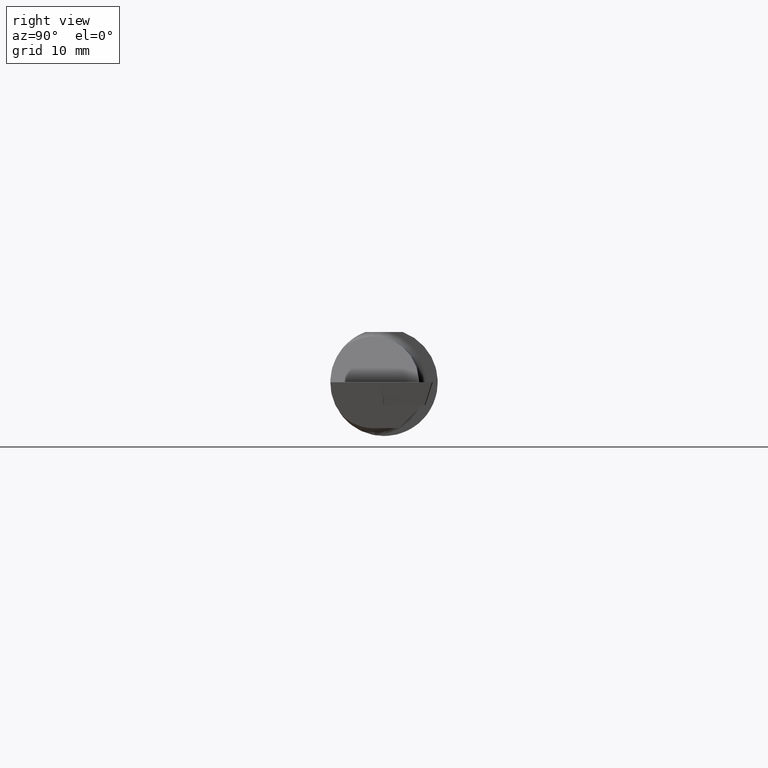
[diagram: clean part render]
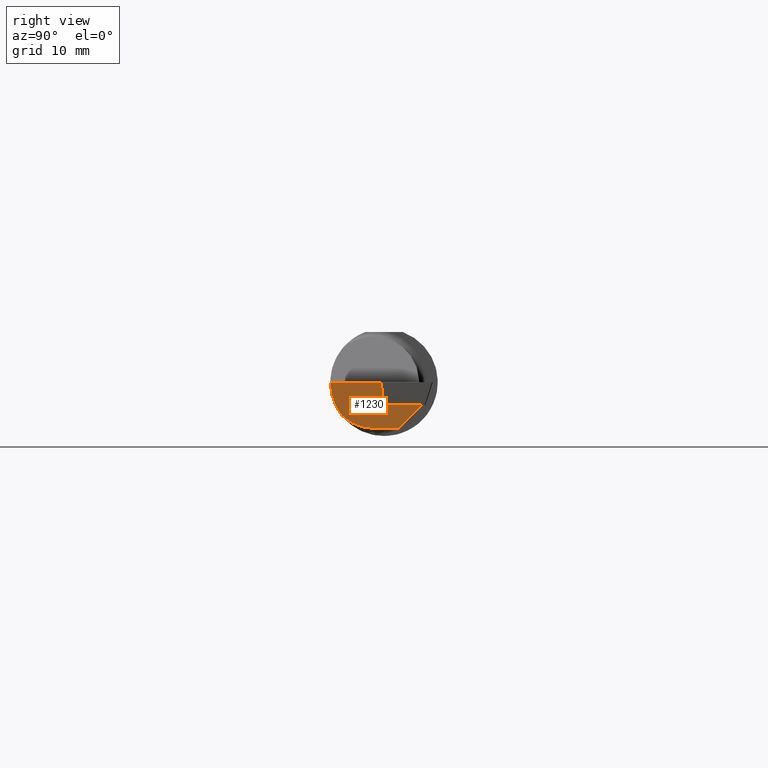
[diagram: same view with one face highlighted and labeled with its STEP entity id]
A machine part, right view. The second image highlights one B-rep face of the part: STEP entity #1230.
In plain terms, the highlighted planar face has unit normal (-0.9932, 0.0262, 0.1132).
Its self-contained STEP definition (entity closure, byte-faithful):
#6 = DIRECTION ( 'NONE',  ( 0.1096666863977468070, -0.1096666863977478895, 0.9879000130524728807 ) ) ;
#21 = CARTESIAN_POINT ( 'NONE',  ( 2.441998784599167749, 0.04365121540083128499, -0.4796930510801391545 ) ) ;
#23 = EDGE_CURVE ( 'NONE', #964, #334, #146, .T. ) ;
#39 = ORIENTED_EDGE ( 'NONE', *, *, #469, .T. ) ;
#69 = VECTOR ( 'NONE', #915, 39.37007874015748854 ) ;
#87 = CARTESIAN_POINT ( 'NONE',  ( 2.464961778531886250, -0.04354375554968627909, -0.2579796886342063389 ) ) ;
#104 = CARTESIAN_POINT ( 'NONE',  ( 2.489993752604012567, 0.1325046208776947954, -0.07899999999999998690 ) ) ;
#113 = CARTESIAN_POINT ( 'NONE',  ( 2.475215915314673332, -0.07804297771170461140, -0.1599999999999999756 ) ) ;
#145 = ORIENTED_EDGE ( 'NONE', *, *, #616, .T. ) ;
#146 = LINE ( 'NONE', #987, #755 ) ;
#185 = CARTESIAN_POINT ( 'NONE',  ( 2.481746091699616130, 0.1697313636084475386, -0.1600000000000000033 ) ) ;
#213 = PLANE ( 'NONE',  #236 ) ;
#235 = VERTEX_POINT ( 'NONE', #737 ) ;
#236 = AXIS2_PLACEMENT_3D ( 'NONE', #1184, #393, #884 ) ;
#281 = EDGE_CURVE ( 'NONE', #235, #1105, #825, .T. ) ;
#288 = CARTESIAN_POINT ( 'NONE',  ( 2.490564789181363814, -0.1873500000000000165, -1.024442997624098707E-16 ) ) ;
#310 = EDGE_CURVE ( 'NONE', #928, #235, #1086, .T. ) ;
#328 = ORIENTED_EDGE ( 'NONE', *, *, #1168, .T. ) ;
#334 = VERTEX_POINT ( 'NONE', #104 ) ;
#361 = ORIENTED_EDGE ( 'NONE', *, *, #281, .F. ) ;
#393 = DIRECTION ( 'NONE',  ( -0.9932313834166578426, 0.02617694830794023778, 0.1131644218538477714 ) ) ;
#408 = CARTESIAN_POINT ( 'NONE',  ( 2.478665149256253919, 0.05283123112360996881, -0.1600000000000000033 ) ) ;
#414 = CARTESIAN_POINT ( 'NONE',  ( 2.478260734595986392, -0.1458506693440426993, -0.1175908361731249352 ) ) ;
#430 = CARTESIAN_POINT ( 'NONE',  ( 2.486479682052326723, -0.0008296820523284446263, -0.07900000000000001465 ) ) ;
#466 = CARTESIAN_POINT ( 'NONE',  ( 2.476288392475423983, -0.03734999999999997350, -0.1600000000000000033 ) ) ;
#469 = EDGE_CURVE ( 'NONE', #1212, #334, #646, .T. ) ;
#471 = DIRECTION ( 'NONE',  ( 0.02634618898897572378, 0.9996528789163552364, -0.000000000000000000 ) ) ;
#483 = CARTESIAN_POINT ( 'NONE',  ( 2.475904879864233799, -0.1159436613722071852, -0.1451859319188884556 ) ) ;
#528 = ORIENTED_EDGE ( 'NONE', *, *, #23, .F. ) ;
#540 = CARTESIAN_POINT ( 'NONE',  ( 2.478260734595986392, -0.1458506693440426993, -0.1175908361731249352 ) ) ;
#598 = VERTEX_POINT ( 'NONE', #466 ) ;
#616 = EDGE_CURVE ( 'NONE', #964, #1105, #1235, .T. ) ;
#619 = DIRECTION ( 'NONE',  ( 0.02634618898897572378, 0.9996528789163552364, 0.000000000000000000 ) ) ;
#641 = DIRECTION ( 'NONE',  ( 0.02634618898897572378, 0.9996528789163552364, 0.000000000000000000 ) ) ;
#646 = LINE ( 'NONE', #87, #69 ) ;
#692 = ORIENTED_EDGE ( 'NONE', *, *, #1110, .T. ) ;
#737 = CARTESIAN_POINT ( 'NONE',  ( 2.490564789181363814, -0.1873500000000000165, -1.024442997624098707E-16 ) ) ;
#755 = VECTOR ( 'NONE', #619, 39.37007874015748143 ) ;
#775 = CARTESIAN_POINT ( 'NONE',  ( 2.478260734595986392, -0.1458506693440426993, -0.1175908361731249352 ) ) ;
#825 = LINE ( 'NONE', #1220, #904 ) ;
#868 = FACE_OUTER_BOUND ( 'NONE', #1188, .T. ) ;
#884 = DIRECTION ( 'NONE',  ( 0.1132032137678928574, 0.000000000000000000, 0.9935718556765890108 ) ) ;
#904 = VECTOR ( 'NONE', #641, 39.37007874015748143 ) ;
#905 = VECTOR ( 'NONE', #6, 39.37007874015748854 ) ;
#915 = DIRECTION ( 'NONE',  ( 0.09921662170354424160, 0.6977845660589906407, 0.7094031021553272032 ) ) ;
#928 = VERTEX_POINT ( 'NONE', #540 ) ;
#958 = CARTESIAN_POINT ( 'NONE',  ( 2.495249464531276828, -0.009599464531278828483, 0.000000000000000000 ) ) ;
#960 = CARTESIAN_POINT ( 'NONE',  ( 2.481378470299465011, -0.1729704544206528138, -0.08395353130638598393 ) ) ;
#962 = CARTESIAN_POINT ( 'NONE',  ( 2.476288392475423983, -0.03734999999999997350, -0.1600000000000000033 ) ) ;
#964 = VERTEX_POINT ( 'NONE', #430 ) ;
#987 = CARTESIAN_POINT ( 'NONE',  ( 2.490968470072857155, 0.1694883047140314514, -0.07900000000000002853 ) ) ;
#1047 = LINE ( 'NONE', #185, #1167 ) ;
#1066 = CARTESIAN_POINT ( 'NONE',  ( 2.485641833368803955, -0.1873500000000004606, -0.04320822862950149390 ) ) ;
#1086 =( BOUNDED_CURVE ( )  B_SPLINE_CURVE ( 3, ( #775, #960, #1066, #288 ),
 .UNSPECIFIED., .F., .F. ) 
 B_SPLINE_CURVE_WITH_KNOTS ( ( 4, 4 ),
 ( 0.6649416263728794574, 1.343476681901080827 ),
 .UNSPECIFIED. ) 
 CURVE ( )  GEOMETRIC_REPRESENTATION_ITEM ( )  RATIONAL_B_SPLINE_CURVE ( ( 1.000000000000000000, 0.9619991217608383494, 0.9619991217608383494, 1.000000000000000000 ) ) 
 REPRESENTATION_ITEM ( '' )  );
#1105 = VERTEX_POINT ( 'NONE', #958 ) ;
#1110 = EDGE_CURVE ( 'NONE', #598, #1212, #1047, .T. ) ;
#1163 =( BOUNDED_CURVE ( )  B_SPLINE_CURVE ( 3, ( #414, #483, #113, #962 ),
 .UNSPECIFIED., .F., .F. ) 
 B_SPLINE_CURVE_WITH_KNOTS ( ( 4, 4 ),
 ( 5.765290843685597189, 6.510504952073413953 ),
 .UNSPECIFIED. ) 
 CURVE ( )  GEOMETRIC_REPRESENTATION_ITEM ( )  RATIONAL_B_SPLINE_CURVE ( ( 1.000000000000000000, 0.9542542848386187382, 0.9542542848386187382, 1.000000000000000000 ) ) 
 REPRESENTATION_ITEM ( '' )  );
#1167 = VECTOR ( 'NONE', #471, 39.37007874015748143 ) ;
#1168 = EDGE_CURVE ( 'NONE', #928, #598, #1163, .T. ) ;
#1184 = CARTESIAN_POINT ( 'NONE',  ( 2.446890290965892500, 0.1706499999999999961, -0.4661379337485548335 ) ) ;
#1188 = EDGE_LOOP ( 'NONE', ( #528, #145, #361, #1219, #328, #692, #39 ) ) ;
#1212 = VERTEX_POINT ( 'NONE', #408 ) ;
#1219 = ORIENTED_EDGE ( 'NONE', *, *, #310, .F. ) ;
#1220 = CARTESIAN_POINT ( 'NONE',  ( 2.500516167212282870, 0.1902349213704785380, -3.414809992080329023E-17 ) ) ;
#1230 = ADVANCED_FACE ( 'NONE', ( #868 ), #213, .F. ) ;
#1235 = LINE ( 'NONE', #21, #905 ) ;